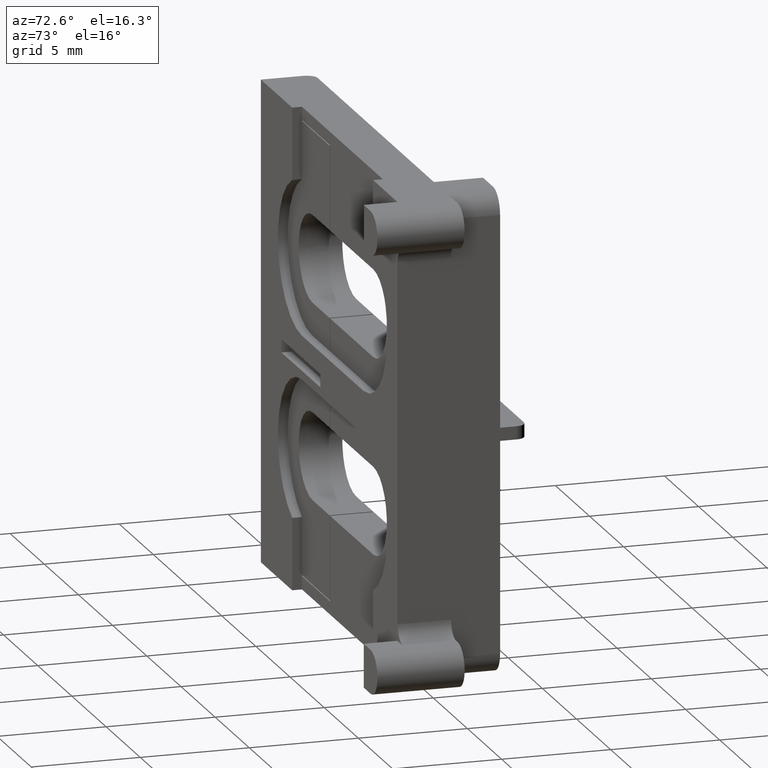
[diagram: clean part render]
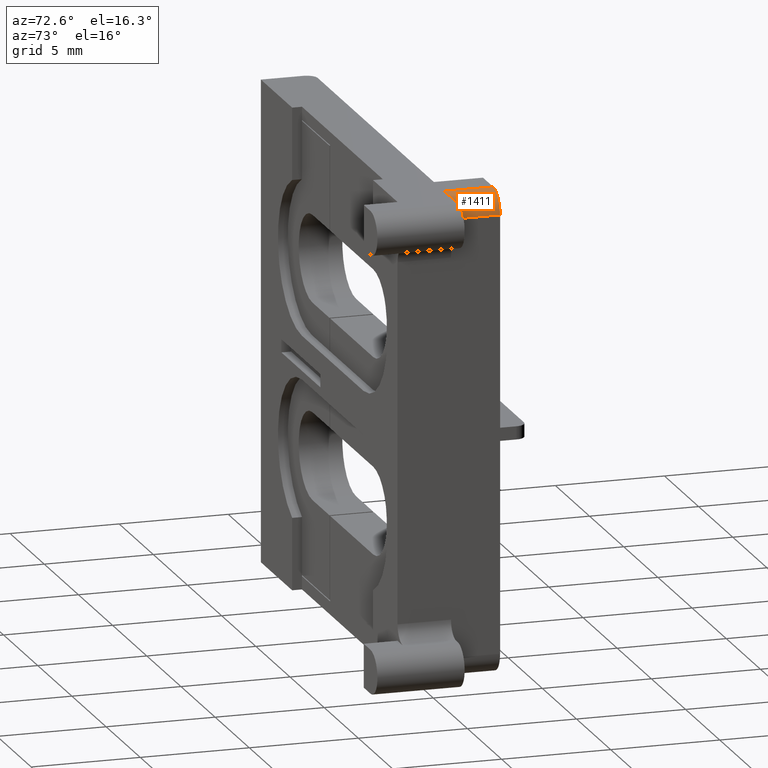
[diagram: same view with one face highlighted and labeled with its STEP entity id]
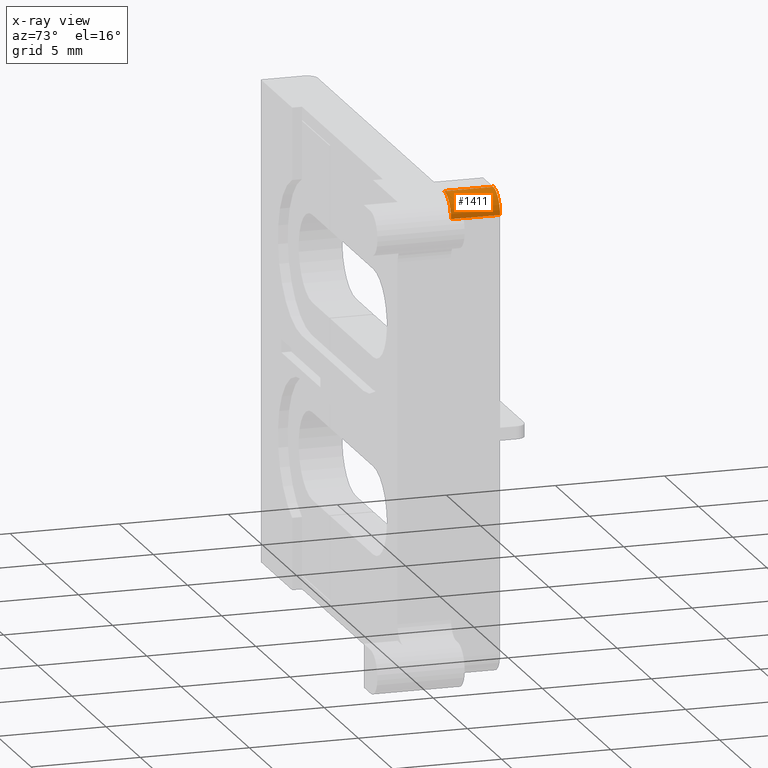
[diagram: x-ray of the same camera — body ghosted, the highlighted face saturated]
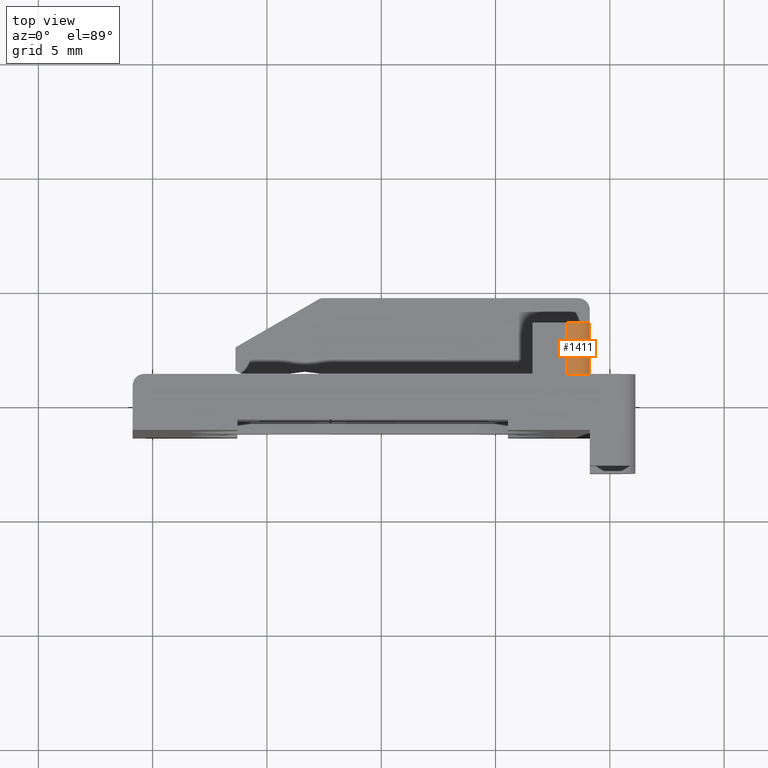
[diagram: same view with one face highlighted and labeled with its STEP entity id]
A machine part, auxiliary view. The second image highlights one B-rep face of the part: STEP entity #1411.
The next image is the same camera in x-ray: the body ghosted, the highlighted face saturated — about 0% of this face is hidden behind the body in this view.
A second angle (top view) of the same face is appended — the face is thin or edge-on in the first view.
In plain terms, the highlighted cylindrical surface (edge-blend (fillet) strip) has radius 1 mm, axis along (-0, 1, -0).
Its self-contained STEP definition (entity closure, byte-faithful):
#50 = AXIS2_PLACEMENT_3D ( 'NONE', #2825, #2823, #2819 ) ;
#209 = AXIS2_PLACEMENT_3D ( 'NONE', #2399, #2420, #2412 ) ;
#217 = CIRCLE ( 'NONE', #209, 1.000000000000000900 ) ;
#248 = CIRCLE ( 'NONE', #272, 1.000000000000000900 ) ;
#259 = VECTOR ( 'NONE', #2649, 1000.000000000000000 ) ;
#272 = AXIS2_PLACEMENT_3D ( 'NONE', #2560, #2562, #2525 ) ;
#291 = VECTOR ( 'NONE', #2688, 1000.000000000000000 ) ;
#603 = EDGE_LOOP ( 'NONE', ( #1348, #1333, #1365, #1339 ) ) ;
#717 = VERTEX_POINT ( 'NONE', #848 ) ;
#753 = VERTEX_POINT ( 'NONE', #944 ) ;
#791 = VERTEX_POINT ( 'NONE', #946 ) ;
#797 = VERTEX_POINT ( 'NONE', #951 ) ;
#848 = CARTESIAN_POINT ( 'NONE',  ( 463.1252094327939500, 146.0878730676890000, 22.60000000000010400 ) ) ;
#944 = CARTESIAN_POINT ( 'NONE',  ( 464.1252094327939500, 148.3378730676890000, 21.60000000000010100 ) ) ;
#946 = CARTESIAN_POINT ( 'NONE',  ( 463.1252094327939500, 148.3378730676890000, 22.60000000000010400 ) ) ;
#951 = CARTESIAN_POINT ( 'NONE',  ( 464.1252094327939500, 146.0878730676890000, 21.60000000000010100 ) ) ;
#1333 = ORIENTED_EDGE ( 'NONE', *, *, #1655, .T. ) ;
#1339 = ORIENTED_EDGE ( 'NONE', *, *, #1661, .T. ) ;
#1348 = ORIENTED_EDGE ( 'NONE', *, *, #1615, .T. ) ;
#1365 = ORIENTED_EDGE ( 'NONE', *, *, #1576, .F. ) ;
#1411 = ADVANCED_FACE ( 'NONE', ( #2818 ), #2827, .T. ) ;
#1576 = EDGE_CURVE ( 'NONE', #797, #717, #217, .T. ) ;
#1615 = EDGE_CURVE ( 'NONE', #753, #791, #248, .T. ) ;
#1655 = EDGE_CURVE ( 'NONE', #791, #717, #2626, .T. ) ;
#1661 = EDGE_CURVE ( 'NONE', #797, #753, #2699, .T. ) ;
#2399 = CARTESIAN_POINT ( 'NONE',  ( 463.1252094327939500, 146.0878730676890000, 21.60000000000009700 ) ) ;
#2412 = DIRECTION ( 'NONE',  ( 0.0000000000000000000, 0.0000000000000000000, 1.000000000000000000 ) ) ;
#2420 = DIRECTION ( 'NONE',  ( 2.530253133731424900E-033, -1.000000000000000000, 2.733577826868160200E-020 ) ) ;
#2525 = DIRECTION ( 'NONE',  ( 0.0000000000000000000, 0.0000000000000000000, 1.000000000000000000 ) ) ;
#2560 = CARTESIAN_POINT ( 'NONE',  ( 463.1252094327939500, 148.3378730676890000, 21.60000000000009700 ) ) ;
#2562 = DIRECTION ( 'NONE',  ( 2.530253133731424900E-033, -1.000000000000000000, 2.733577826868160200E-020 ) ) ;
#2626 = LINE ( 'NONE', #2634, #259 ) ;
#2634 = CARTESIAN_POINT ( 'NONE',  ( 463.1252094327939500, 142.0878730676890000, 22.60000000000010400 ) ) ;
#2649 = DIRECTION ( 'NONE',  ( -9.546107180843072800E-035, -1.000000000000000000, 2.733577826868160200E-020 ) ) ;
#2688 = DIRECTION ( 'NONE',  ( -2.625714205539854300E-033, 1.000000000000000000, -9.169429524186070000E-048 ) ) ;
#2692 = CARTESIAN_POINT ( 'NONE',  ( 464.1252094327939500, 140.9878730676890100, 21.60000000000010100 ) ) ;
#2699 = LINE ( 'NONE', #2692, #291 ) ;
#2818 = FACE_OUTER_BOUND ( 'NONE', #603, .T. ) ;
#2819 = DIRECTION ( 'NONE',  ( 0.0000000000000000000, 0.0000000000000000000, 1.000000000000000000 ) ) ;
#2823 = DIRECTION ( 'NONE',  ( -2.530253133731424900E-033, 1.000000000000000000, -2.733577826868160200E-020 ) ) ;
#2825 = CARTESIAN_POINT ( 'NONE',  ( 463.1252094327939500, 142.0878730676890000, 21.60000000000009700 ) ) ;
#2827 = CYLINDRICAL_SURFACE ( 'NONE', #50, 1.000000000000000900 ) ;